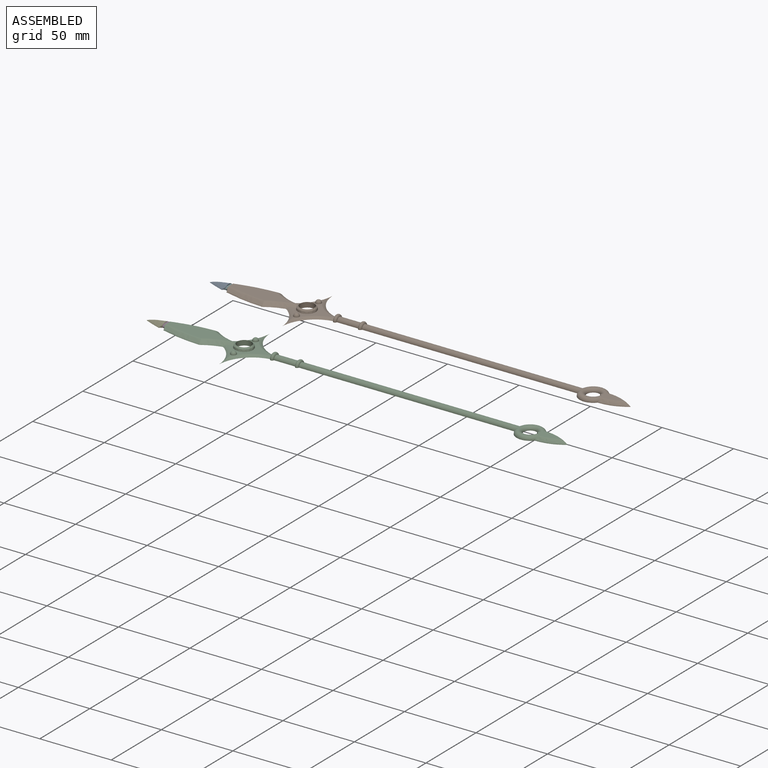
[diagram: assembled view]
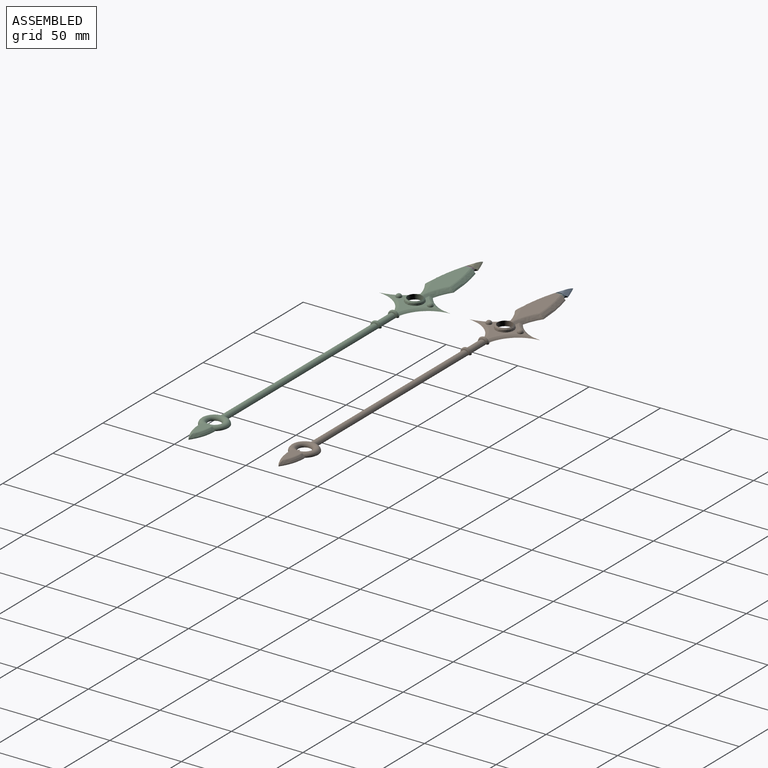
[diagram: assembled view, second angle]
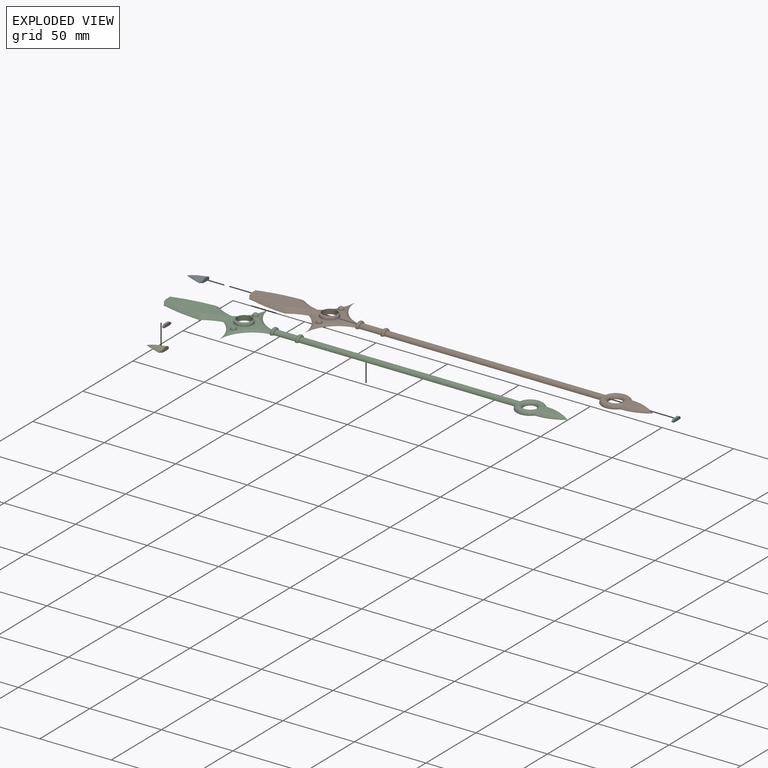
[diagram: exploded view]
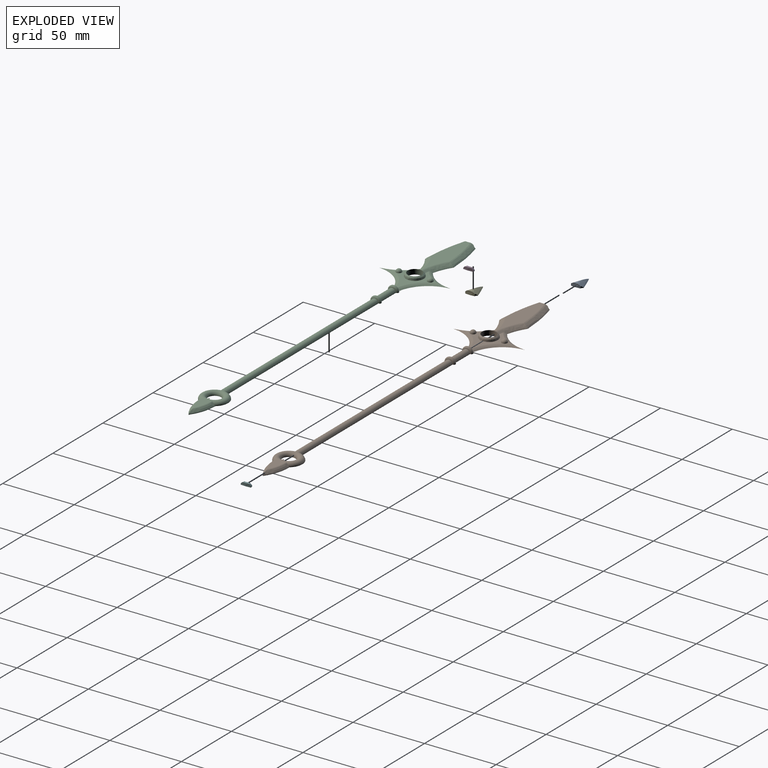
[diagram: exploded view, second angle]
ASSEMBLY  parts=6 mates=2
PART A: 7 faces, bbox 13.8x9.5x2.5 mm
  f0: cylinder r=2.15mm len=1.58mm, axis (0,0,-1), area 1.4mm2, adj f1,f4,f6
  f1: cylinder r=20.94mm len=6.63mm, axis (0,0,-1), area 14.4mm2, adj f0,f2,f3,f4,f5,f6
  f2: cylinder r=2.15mm len=1.58mm, axis (0,0,-1), area 1.4mm2, adj f1,f4,f5
  f3: plane 3.96x2.6mm, normal (0,0,1), area 5.3mm2, adj f1,f5,f6
  f4: plane 13.5x8.8mm, normal (0,0,-1), area 66.7mm2, adj f0,f1,f2,f5,f6
  f5: bspline ~13.82x7.96mm, area 38.2mm2, adj f1,f2,f3,f4,f6
  f6: bspline ~13.82x7.96mm, area 38.2mm2, adj f0,f1,f3,f4,f5
PART B: 33 faces, bbox 281.6x53.9x6.3 mm
  f0: cylinder r=5.1mm len=0.77mm, axis (0,0,-1), area 0mm2, adj f1,f2,f9
  f1: torus R=7mm, axis (0,0,-1), area 293.9mm2, adj f0,f2,f4,f5,f6,f7,f8,f10
  f2: plane 279.6x50.03mm, normal (0,0,-1), area 2378.8mm2, adj f0,f1,f8,f9,f10,f11,f12,f14
  f3: plane 16.68x7.05mm, normal (0,0,1), area 72.7mm2, adj f4,f5,f6,f7,f8,f9
  f4: cylinder r=5.1mm len=2.59mm, axis (0,0,-1), area 0.6mm2, adj f1,f3,f8
  f5: cylinder r=5.1mm len=2.02mm, axis (0,0,-1), area 1.9mm2, adj f1,f3,f6
  f6: cylinder r=5.1mm len=2mm, axis (0,0,-1), area 1.9mm2, adj f1,f3,f5
  f7: cylinder r=5.1mm len=3.88mm, axis (0,0,-1), area 1.7mm2, adj f1,f3,f9
  f8: bspline ~18.71x7.83mm, area 62.4mm2, adj f1,f2,f3,f4,f9
  f9: bspline ~20.42x8.88mm, area 63.9mm2, adj f0,f2,f3,f7,f8
  f10: cylinder r=2.5mm len=153mm, axis (1,0,0), area 1193.2mm2, adj f1,f2,f11
  f11: torus R=2.5mm, axis (-1,0,0), area 40.7mm2, adj f2,f10,f12
  f12: cylinder r=2.5mm len=15mm, axis (1,0,0), area 117.8mm2, adj f2,f11,f14
  f13: plane 5.5x3mm, normal (-1,0,0), area 5.8mm2, adj f14,f15,f17,f19
  f14: torus R=2.5mm, axis (-1,0,0), area 40.7mm2, adj f2,f12,f13
  f15: plane 31.12x30.25mm, normal (0,0,1), area 202.4mm2, adj f13,f16,f17,f18,f19,f24,f26,f28
  f16: bspline ~24.31x14.92mm, area 52.2mm2, adj f2,f15,f17,f26
  f17: bspline ~26.59x24.23mm, area 74.4mm2, adj f2,f13,f15,f16
  f18: bspline ~24.31x14.92mm, area 52.2mm2, adj f2,f15,f19,f24
  f19: bspline ~26.59x24.23mm, area 74.4mm2, adj f2,f13,f15,f18
  f20: cylinder r=2.15mm len=1.95mm, axis (0,0,-1), area 1.7mm2, adj f2,f21,f25
  f21: cylinder r=20.94mm len=7.3mm, axis (0,0,-1), area 16.4mm2, adj f2,f20,f22,f23,f25,f27
  f22: cylinder r=2.15mm len=1.95mm, axis (0,0,-1), area 1.7mm2, adj f2,f21,f27
  f23: plane 47x12.95mm, normal (0,0,1), area 351.5mm2, adj f21,f24,f25,f26,f27
  f24: bspline ~23.13x10.73mm, area 78.9mm2, adj f2,f15,f18,f23,f25,f26,f28,f30
  f25: bspline ~29.95x8.24mm, area 125.8mm2, adj f2,f20,f21,f23,f24
  f26: bspline ~20.58x10mm, area 78.6mm2, adj f2,f15,f16,f23,f24,f27,f30
  f27: bspline ~29.95x8.24mm, area 125.8mm2, adj f2,f21,f22,f23,f26
  f28: cylinder r=6.25mm len=12.5mm, axis (0,0,-1), area 2.8mm2, adj f15,f24,f30
  f29: cylinder r=5mm len=10mm, axis (0,0,-1), area 110mm2, adj f2,f30
  f30: bspline ~12.49x12.49mm, area 95.3mm2, adj f24,f26,f28,f29
  f31: sphere r=2mm, area 25.1mm2, adj f15
  f32: sphere r=2mm, area 25.1mm2, adj f15
PART C: same geometry as B
PART D: 8 faces, bbox 2.6x7.4x2 mm
  f0: cylinder r=20.94mm len=6.63mm, axis (0,0,-1), area 11.6mm2, adj f1,f3,f4,f5,f6,f7
  f1: cylinder r=2.15mm len=1.49mm, axis (0,0,-1), area 1.1mm2, adj f0,f2,f5,f7
  f2: cylinder r=20.94mm len=7.3mm, axis (0,0,-1), area 12.9mm2, adj f1,f3,f4,f5,f6,f7
  f3: cylinder r=2.15mm len=1.49mm, axis (0,0,-1), area 1.1mm2, adj f0,f2,f5,f6
  f4: plane 4.6x1.65mm, normal (0,0,1), area 6.5mm2, adj f0,f2,f6,f7
  f5: plane 7.3x1.81mm, normal (0,0,-1), area 10.5mm2, adj f0,f1,f2,f3
  f6: bspline ~2.6x1.8mm, area 2.9mm2, adj f0,f2,f3,f4
  f7: bspline ~2.6x1.8mm, area 2.9mm2, adj f0,f1,f2,f4
PART E: same geometry as A
PART F: same geometry as D
PLACE A t=(-23.01,0,28.54)mm
PLACE B t=(-23.01,0,28.54)mm
PLACE C t=(-23.01,-62.93,28.58)mm
PLACE D t=(-23.01,-62.93,28.83)mm
PLACE E t=(-23.01,-62.93,28.58)mm
PLACE F t=(-23.01,0,28.54)mm
MATE fastened D.f0 <-> E.f1  axis (0,0,-1) through (-298.74,-62.93,29.83)mm
MATE fastened D.f2 <-> C.f21  axis (0,0,-1) through (-297.2,-62.93,29.83)mm
